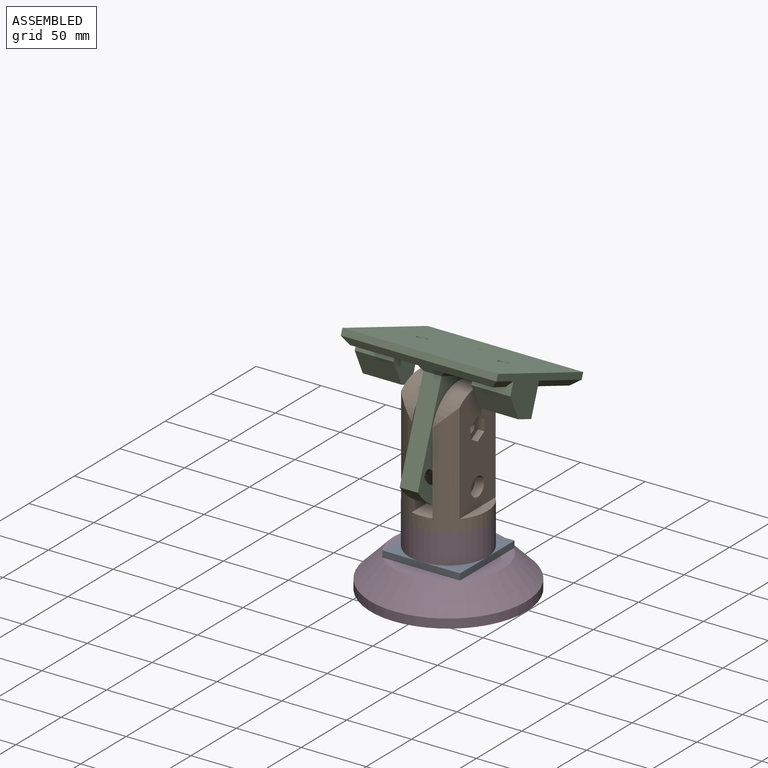
[diagram: assembled view]
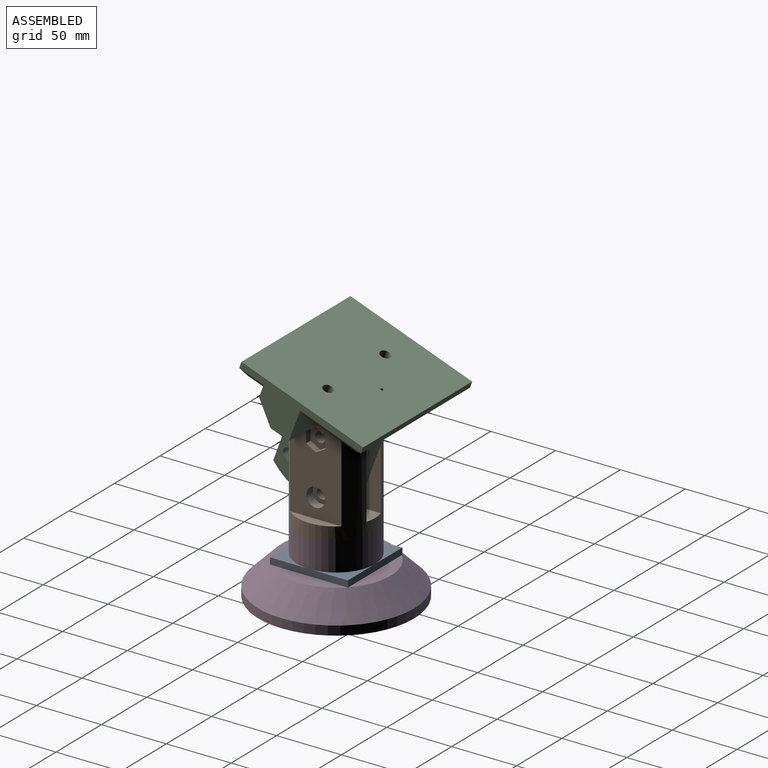
[diagram: assembled view, second angle]
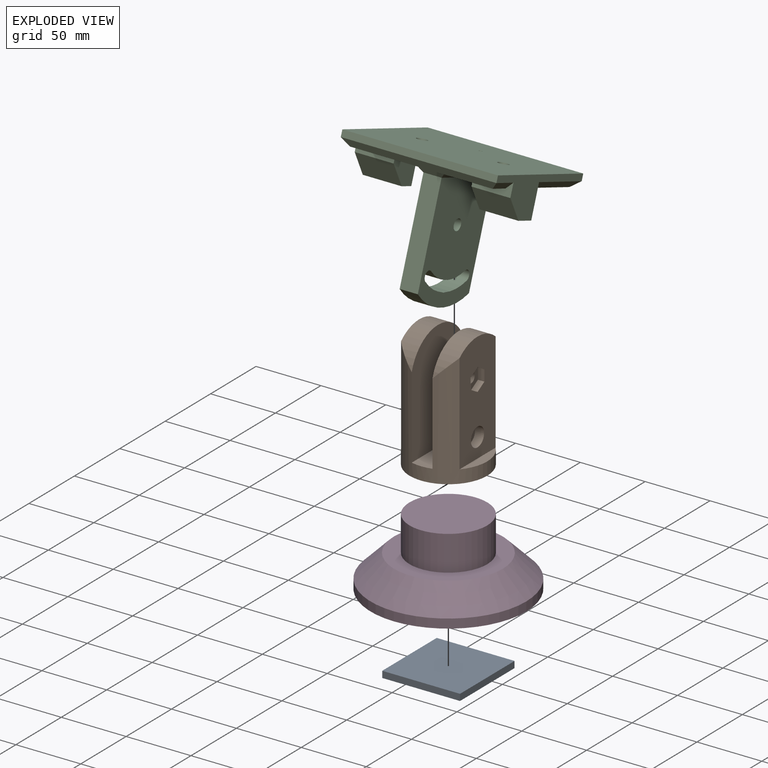
[diagram: exploded view]
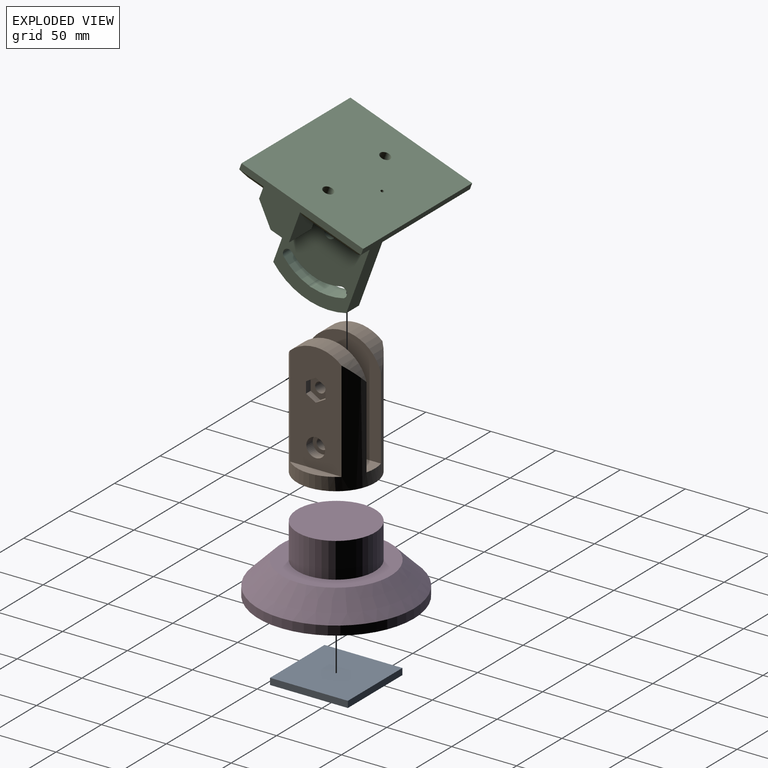
[diagram: exploded view, second angle]
ASSEMBLY  parts=4 mates=3
PART A: 6 faces, bbox 60x60x5 mm
  f0: plane 60x5mm, normal (0,-1,0), area 300mm2, adj f1,f3,f4,f5
  f1: plane 60x5mm, normal (1,0,0), area 300mm2, adj f0,f2,f4,f5
  f2: plane 60x5mm, normal (0,1,0), area 300mm2, adj f1,f3,f4,f5
  f3: plane 60x5mm, normal (-1,0,0), area 300mm2, adj f0,f2,f4,f5
  f4: plane 60x60mm, normal (0,0,1), area 3600mm2, adj f0,f1,f2,f3
  f5: plane 60x60mm, normal (0,0,-1), area 3600mm2, adj f0,f1,f2,f3
PART B: 33 faces, bbox 60x60x95 mm
  f0: cylinder r=4.2mm len=8.4mm, axis (1,0,0), area 171.5mm2, adj f6,f32
  f1: plane 85x39.69mm, normal (-1,0,0), area 2978.8mm2, adj f4,f7,f13,f14,f26,f27,f28,f29
  f2: plane 85x39.69mm, normal (1,0,0), area 2919.7mm2, adj f4,f8,f15,f16,f17,f18,f19,f20
  f3: cylinder r=4mm len=9.5mm, axis (1,0,0), area 238.8mm2, adj f5,f22
  f4: cylinder r=30mm len=87.5mm, axis (0,0,1), area 6758.6mm2, adj f1,f2,f5,f6,f7,f8,f9,f10
  f5: plane 85x57.83mm, normal (-1,0,0), area 4476.9mm2, adj f3,f4,f10,f15,f23
  f6: plane 85x57.83mm, normal (1,0,0), area 4476.9mm2, adj f0,f4,f10,f13,f14
  f7: plane 39.69x7.5mm, normal (0,0,1), area 204mm2, adj f1,f4
  f8: plane 39.69x7.5mm, normal (0,0,1), area 204mm2, adj f2,f4
  f9: plane 60x60mm, normal (0,0,-1), area 2777.2mm2, adj f4,f11
  f10: plane 60x16mm, normal (0,0,1), area 771.8mm2, adj f4,f5,f6,f12
  f11: cylinder r=4mm len=8mm, axis (0,0,1), area 163.4mm2, adj f9,f12
  f12: cone r=4mm half-angle=45deg, axis (0,0,1), area 178.8mm2, adj f10,f11
  f13: cylinder r=4mm len=14.5mm, axis (1,0,0), area 364.4mm2, adj f1,f6
  f14: cylinder r=30mm len=57.83mm, axis (1,0,0), area 880.3mm2, adj f1,f4,f6
  f15: cylinder r=30mm len=57.83mm, axis (1,0,0), area 880.3mm2, adj f2,f4,f5
  f16: plane 7.5x5mm, normal (0,0.5,0.87), area 43.3mm2, adj f2,f17,f21,f22
  f17: plane 7.5x5mm, normal (0,-0.5,0.87), area 43.3mm2, adj f2,f16,f18,f22
  f18: plane 8.66x5mm, normal (0,-1,0), area 43.3mm2, adj f2,f17,f19,f22
  f19: plane 7.5x5mm, normal (0,-0.5,-0.87), area 43.3mm2, adj f2,f18,f20,f22
  f20: plane 7.5x5mm, normal (0,0.5,-0.87), area 43.3mm2, adj f2,f19,f21,f22
  f21: plane 8.66x5mm, normal (0,1,0), area 43.3mm2, adj f2,f16,f20,f22
  f22: plane 17.32x15mm, normal (1,0,0), area 144.6mm2, adj f3,f16,f17,f18,f19,f20,f21
  f23: cylinder r=4.2mm len=8.4mm, axis (1,0,0), area 197.9mm2, adj f5,f24
  f24: plane 14.5x14.5mm, normal (1,0,0), area 109.7mm2, adj f23,f25
  f25: cylinder r=7.25mm len=14.5mm, axis (1,0,0), area 318.9mm2, adj f2,f24
  f26: plane 8.52x8mm, normal (0,0.87,-0.5), area 78.6mm2, adj f1,f27,f31,f32
  f27: plane 9.82x8mm, normal (0,0,-1), area 78.6mm2, adj f1,f26,f28,f32
  f28: plane 8.49x8mm, normal (0,-0.86,-0.5), area 78.6mm2, adj f1,f27,f29,f32
  f29: plane 8.52x8mm, normal (0,-0.87,0.5), area 78.6mm2, adj f1,f28,f30,f32
  f30: plane 9.82x8mm, normal (0,0,1), area 78.6mm2, adj f1,f29,f31,f32
  f31: plane 8.49x8mm, normal (0,0.86,0.5), area 78.6mm2, adj f1,f26,f30,f32
  f32: plane 19.65x17.04mm, normal (-1,0,0), area 195.2mm2, adj f0,f26,f27,f28,f29,f30,f31
PART C: 57 faces, bbox 120x100x100 mm
  f0: plane 100x30mm, normal (-1,0,0), area 1109.5mm2, adj f8,f9,f12,f29,f30,f33,f44,f47
  f1: plane 110x90mm, normal (0,0,1), area 6650.9mm2, adj f14,f16,f29,f30,f32,f35,f36,f37
  f2: plane 85x60mm, normal (1,0,0), area 4445.5mm2, adj f4,f5,f17,f19,f20,f21,f22,f23
  f3: plane 85x60mm, normal (-1,0,0), area 4445.5mm2, adj f4,f5,f17,f19,f20,f21,f22,f23
  f4: cylinder r=4.2mm len=14mm, axis (-1,0,0), area 34.5mm2, adj f2,f3,f23,f25
  f5: plane 75.9x14mm, normal (0,-1,0), area 1062.6mm2, adj f2,f3,f21,f42
  f6: cylinder r=4mm len=8mm, axis (0,0,1), area 150.8mm2, adj f12,f15
  f7: cylinder r=4mm len=8mm, axis (0,0,1), area 150.8mm2, adj f12,f13
  f8: plane 120x5mm, normal (0,1,0), area 600mm2, adj f0,f10,f12,f45
  f9: plane 120x5mm, normal (0,-1,0), area 600mm2, adj f0,f10,f12,f48
  f10: plane 100x30mm, normal (1,0,0), area 1137.5mm2, adj f8,f9,f12,f35,f36,f39,f46,f49
  f11: cylinder r=1.25mm len=10mm, axis (0,0,1), area 78.5mm2, adj f12,f18
  f12: plane 120x100mm, normal (0,0,-1), area 11894.6mm2, adj f0,f6,f7,f8,f9,f10,f11
  f13: plane 8.25x8.25mm, normal (0,0,1), area 3.2mm2, adj f7,f14
  f14: cylinder r=4.12mm len=8.25mm, axis (0,0,1), area 103.7mm2, adj f1,f13,f28
  f15: plane 8.25x8.25mm, normal (0,0,1), area 3.2mm2, adj f6,f16
  f16: cylinder r=4.12mm len=8.25mm, axis (0,0,1), area 103.7mm2, adj f1,f15,f34
  f17: plane 75.9x14mm, normal (0,1,0), area 1062.6mm2, adj f2,f3,f21,f41
  f18: plane 2.5x2.5mm, normal (0,0,-1), area 4.9mm2, adj f11
  f19: cylinder r=4.2mm len=14mm, axis (-1,0,0), area 369.5mm2, adj f2,f3
  f20: cylinder r=4.2mm len=14mm, axis (-1,0,0), area 38.3mm2, adj f2,f3,f22,f26
  f21: cylinder r=54mm len=60mm, axis (-1,0,0), area 890.6mm2, adj f2,f3,f5,f17
  f22: cylinder r=44mm len=22.86mm, axis (-1,0,0), area 339.9mm2, adj f2,f3,f20,f24
  f23: cylinder r=36mm len=18.59mm, axis (-1,0,0), area 276.5mm2, adj f2,f3,f4,f24
  f24: cylinder r=4mm len=14mm, axis (-1,0,0), area 175.9mm2, adj f2,f3,f22,f23
  f25: cylinder r=36mm len=18.59mm, axis (-1,0,0), area 276.5mm2, adj f2,f3,f4,f27
  f26: cylinder r=44mm len=22.86mm, axis (-1,0,0), area 339.9mm2, adj f2,f3,f20,f27
  f27: cylinder r=4mm len=14mm, axis (-1,0,0), area 175.9mm2, adj f2,f3,f25,f26
  f28: plane 5.5x4.13mm, normal (0,0,-1), area 1mm2, adj f14,f30,f31,f32
  f29: plane 30x10mm, normal (0,1,0), area 162.5mm2, adj f0,f1,f32,f44,f50
  f30: plane 25x24.63mm, normal (0,-1,0), area 505.1mm2, adj f0,f1,f28,f31,f33,f47
  f31: cylinder r=4mm len=20mm, axis (0,0,-1), area 153.6mm2, adj f28,f30,f32,f33
  f32: plane 26.24x20mm, normal (1,0,0), area 412.3mm2, adj f1,f28,f29,f31,f33,f50
  f33: plane 30x15mm, normal (0,0,1), area 432.1mm2, adj f0,f30,f31,f32,f50
  f34: plane 5.5x4.13mm, normal (0,0,-1), area 1mm2, adj f16,f35,f37,f38
  f35: plane 25x24.63mm, normal (0,-1,0), area 505.1mm2, adj f1,f10,f34,f38,f39,f49
  f36: plane 30x10mm, normal (0,1,0), area 162.5mm2, adj f1,f10,f37,f46,f51
  f37: plane 26.24x20mm, normal (-1,0,0), area 412.3mm2, adj f1,f34,f36,f38,f39,f51
  f38: cylinder r=4mm len=20mm, axis (0,0,-1), area 153.6mm2, adj f34,f35,f37,f39
  f39: plane 30x15mm, normal (0,0,1), area 432.1mm2, adj f10,f35,f37,f38,f51
  f40: plane 70x5mm, normal (0.71,0,0.71), area 459.6mm2, adj f1,f2,f41,f42
  f41: plane 24x5mm, normal (0,0.71,0.71), area 134.4mm2, adj f1,f17,f40,f43
  f42: plane 24x5mm, normal (0,-0.71,0.71), area 134.4mm2, adj f1,f5,f40,f43
  f43: plane 70x5mm, normal (-0.71,0,0.71), area 459.6mm2, adj f1,f3,f41,f42
  f44: plane 20x5mm, normal (-0.71,0,0.71), area 123.7mm2, adj f0,f1,f29,f45
  f45: plane 120x5mm, normal (0,0.71,0.71), area 813.2mm2, adj f1,f8,f44,f46
  f46: plane 20x5mm, normal (0.71,0,0.71), area 123.7mm2, adj f1,f10,f36,f45
  f47: plane 50x5mm, normal (-0.71,0,0.71), area 335.9mm2, adj f0,f1,f30,f48
  f48: plane 120x5mm, normal (0,-0.71,0.71), area 813.2mm2, adj f1,f9,f47,f49
  f49: plane 50x5mm, normal (0.71,0,0.71), area 335.9mm2, adj f1,f10,f35,f48
  f50: plane 30x15mm, normal (0,0.71,0.71), area 636.4mm2, adj f0,f29,f32,f33
  f51: plane 30x15mm, normal (0,0.71,0.71), area 636.4mm2, adj f10,f36,f37,f39
  f52: plane 10x2mm, normal (0,0,1), area 20mm2, adj f0,f53,f55,f56
  f53: plane 14x10mm, normal (0,1,0), area 140mm2, adj f0,f52,f54,f56
  f54: plane 10x2mm, normal (0,0,-1), area 20mm2, adj f0,f53,f55,f56
  f55: plane 14x10mm, normal (0,-1,0), area 140mm2, adj f0,f52,f54,f56
  f56: plane 14x2mm, normal (-1,0,0), area 28mm2, adj f52,f53,f54,f55
PART D: 6 faces, bbox 120x120x52 mm
  f0: cylinder r=60mm len=120mm, axis (0,0,1), area 2638.9mm2, adj f1,f5
  f1: plane 120x120mm, normal (0,0,-1), area 11309.7mm2, adj f0
  f2: plane 84x84mm, normal (0,0,1), area 2714.3mm2, adj f3,f5
  f3: cylinder r=30mm len=60mm, axis (0,0,-1), area 5089.4mm2, adj f2,f4
  f4: plane 60x60mm, normal (0,0,1), area 2827.4mm2, adj f3
  f5: cone r=42mm half-angle=45deg, axis (0,0,-1), area 8157.1mm2, adj f0,f2
PLACE A t=(-147.82,-62.16,-70.33)mm
PLACE B t=(16.92,-62.16,-33.33)mm
PLACE C rot(axis=(1,0,0),159.8deg) t=(30.62,-289.02,143.44)mm
PLACE D t=(-147.82,-62.16,-70.33)mm
MATE fastened A.f5 <-> D.f0  axis (0,0,-1) through (16.92,-62.16,-70.33)mm
MATE fastened D.f0 <-> B.f11  axis (0,0,-1) through (16.92,-62.16,-43.33)mm
MATE cylindrical B.f14 <-> C.f19  axis (1,0,0) through (8.92,-62.16,21.67)mm
